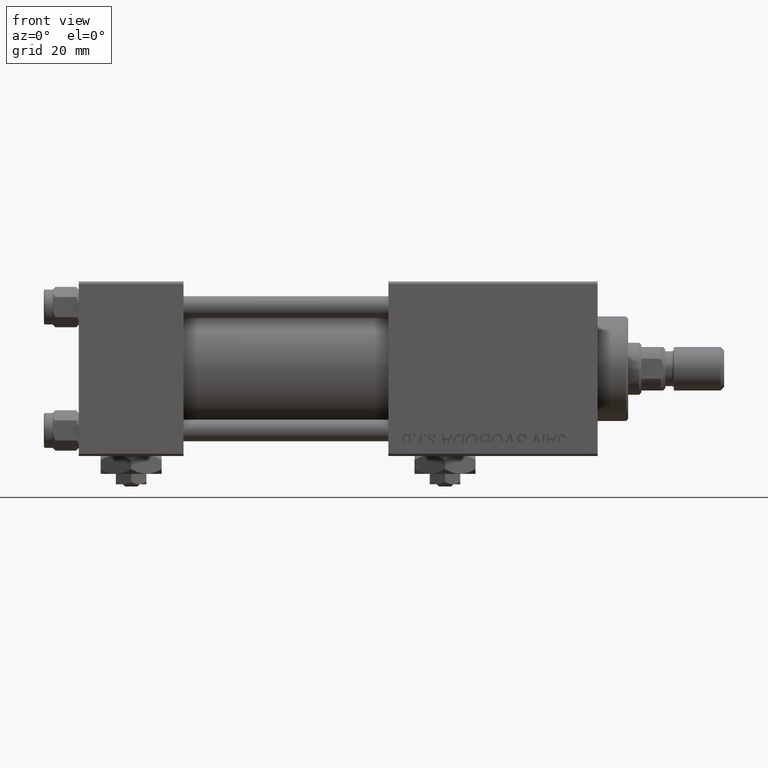
[diagram: clean part render]
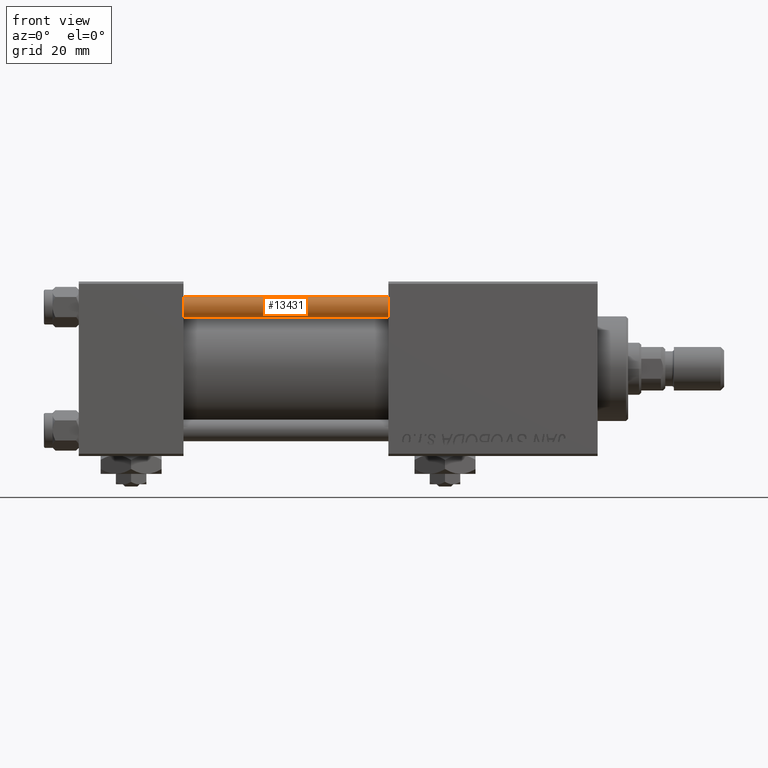
[diagram: same view with one face highlighted and labeled with its STEP entity id]
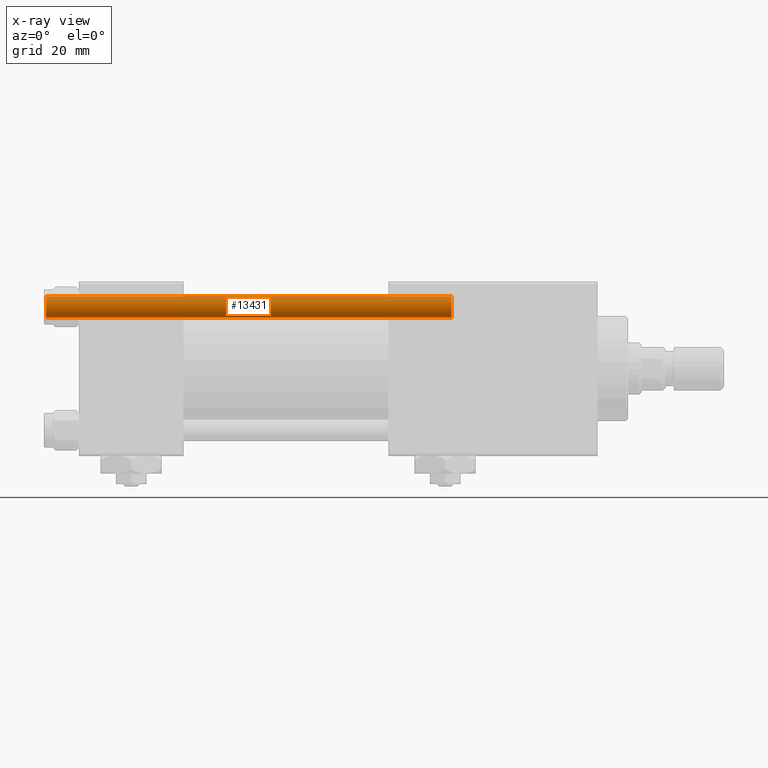
[diagram: x-ray of the same camera — body ghosted, the highlighted face saturated]
A machine part, front view. The second image highlights one B-rep face of the part: STEP entity #13431.
The next image is the same camera in x-ray: the body ghosted, the highlighted face saturated — about 0% of this face is hidden behind the body in this view.
In plain terms, the highlighted cylindrical surface (edge-blend (fillet) strip) has radius 2.5 mm, axis along (1, 0, -0).
Its self-contained STEP definition (entity closure, byte-faithful):
#74 = DIRECTION ( 'NONE',  ( -0.000000000000000000, -0.000000000000000000, -1.000000000000000000 ) ) ;
#2428 = ORIENTED_EDGE ( 'NONE', *, *, #50144, .F. ) ;
#3033 = DIRECTION ( 'NONE',  ( -1.000000000000000000, 0.000000000000000000, 0.000000000000000000 ) ) ;
#3164 = EDGE_CURVE ( 'NONE', #9262, #29856, #24939, .T. ) ;
#5073 = CARTESIAN_POINT ( 'NONE',  ( -2.500000000000000000, 0.000000000000000000, 0.5000000000000004441 ) ) ;
#5731 = CARTESIAN_POINT ( 'NONE',  ( -2.500000000000000000, 0.000000000000000000, 94.00000000000000000 ) ) ;
#7476 = LINE ( 'NONE', #5731, #30904 ) ;
#8199 = AXIS2_PLACEMENT_3D ( 'NONE', #31500, #74, #3033 ) ;
#8738 = CARTESIAN_POINT ( 'NONE',  ( 2.500000000000000000, 3.061616997868383141E-16, 0.5000000000000004441 ) ) ;
#9262 = VERTEX_POINT ( 'NONE', #8738 ) ;
#10118 = ORIENTED_EDGE ( 'NONE', *, *, #17093, .T. ) ;
#13353 = DIRECTION ( 'NONE',  ( -0.000000000000000000, -0.000000000000000000, -1.000000000000000000 ) ) ;
#13431 = ADVANCED_FACE ( 'NONE', ( #36520 ), #48238, .T. ) ;
#15365 = CARTESIAN_POINT ( 'NONE',  ( 2.500000000000000000, 3.061616997868383141E-16, 93.50000000000001421 ) ) ;
#15566 = CARTESIAN_POINT ( 'NONE',  ( 2.500000000000000000, 3.061616997868383141E-16, 94.00000000000000000 ) ) ;
#15825 = LINE ( 'NONE', #15566, #26496 ) ;
#16229 = DIRECTION ( 'NONE',  ( -0.000000000000000000, -0.000000000000000000, 1.000000000000000000 ) ) ;
#16466 = ORIENTED_EDGE ( 'NONE', *, *, #46170, .T. ) ;
#17062 = ORIENTED_EDGE ( 'NONE', *, *, #3164, .T. ) ;
#17093 = EDGE_CURVE ( 'NONE', #41821, #45914, #34692, .T. ) ;
#24939 = CIRCLE ( 'NONE', #45354, 2.500000000000000000 ) ;
#26299 = CARTESIAN_POINT ( 'NONE',  ( -2.500000000000000000, 0.000000000000000000, 93.50000000000001421 ) ) ;
#26496 = VECTOR ( 'NONE', #13353, 1000.000000000000000 ) ;
#27796 = CARTESIAN_POINT ( 'NONE',  ( 0.000000000000000000, 0.000000000000000000, 93.50000000000001421 ) ) ;
#29856 = VERTEX_POINT ( 'NONE', #5073 ) ;
#30904 = VECTOR ( 'NONE', #38453, 1000.000000000000000 ) ;
#31500 = CARTESIAN_POINT ( 'NONE',  ( 0.000000000000000000, 0.000000000000000000, 94.00000000000000000 ) ) ;
#33457 = EDGE_LOOP ( 'NONE', ( #10118, #16466, #17062, #2428 ) ) ;
#34692 = CIRCLE ( 'NONE', #44855, 2.500000000000000000 ) ;
#36520 = FACE_OUTER_BOUND ( 'NONE', #33457, .T. ) ;
#38453 = DIRECTION ( 'NONE',  ( -0.000000000000000000, -0.000000000000000000, -1.000000000000000000 ) ) ;
#39535 = DIRECTION ( 'NONE',  ( 0.000000000000000000, 0.000000000000000000, -1.000000000000000000 ) ) ;
#40193 = DIRECTION ( 'NONE',  ( 1.000000000000000000, 0.000000000000000000, 0.000000000000000000 ) ) ;
#41821 = VERTEX_POINT ( 'NONE', #26299 ) ;
#44855 = AXIS2_PLACEMENT_3D ( 'NONE', #27796, #39535, #47768 ) ;
#45354 = AXIS2_PLACEMENT_3D ( 'NONE', #52658, #16229, #40193 ) ;
#45914 = VERTEX_POINT ( 'NONE', #15365 ) ;
#46170 = EDGE_CURVE ( 'NONE', #45914, #9262, #15825, .T. ) ;
#47768 = DIRECTION ( 'NONE',  ( 1.000000000000000000, 0.000000000000000000, 0.000000000000000000 ) ) ;
#48238 = CYLINDRICAL_SURFACE ( 'NONE', #8199, 2.500000000000000000 ) ;
#50144 = EDGE_CURVE ( 'NONE', #41821, #29856, #7476, .T. ) ;
#52658 = CARTESIAN_POINT ( 'NONE',  ( 0.000000000000000000, 0.000000000000000000, 0.5000000000000004441 ) ) ;